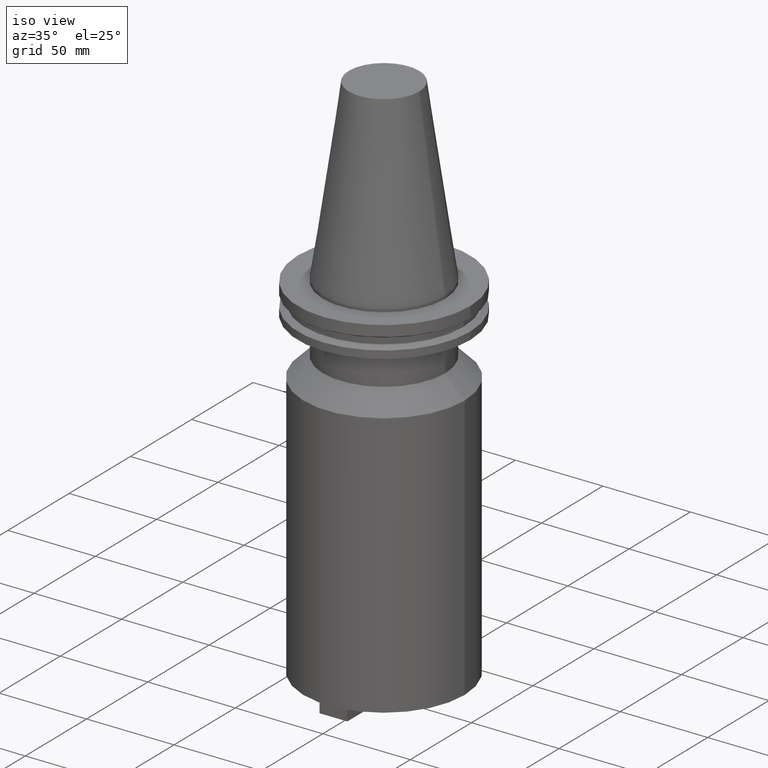
[diagram: clean part render]
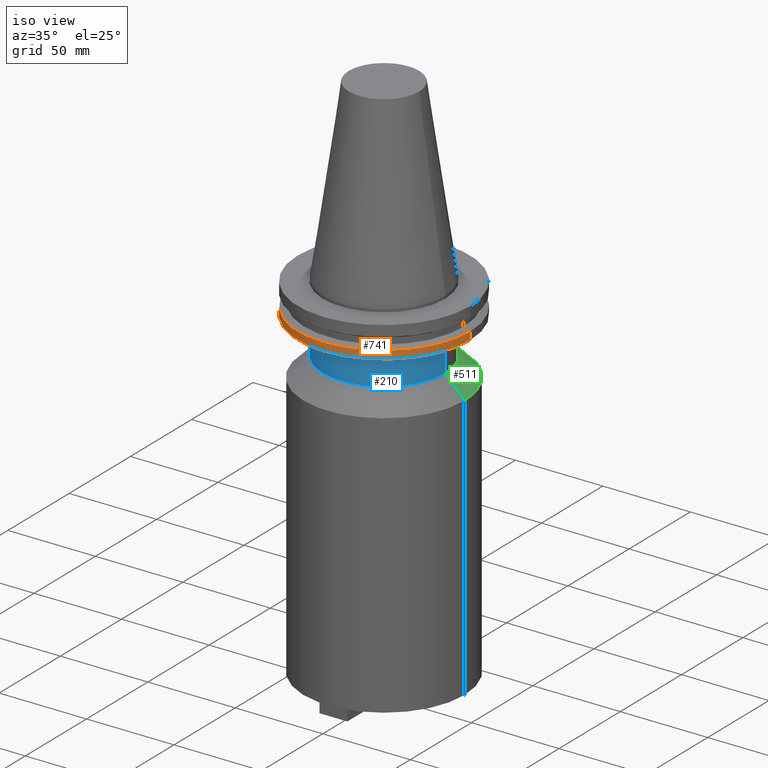
[diagram: same view with three faces highlighted in distinct colors, each labeled with its STEP entity id]
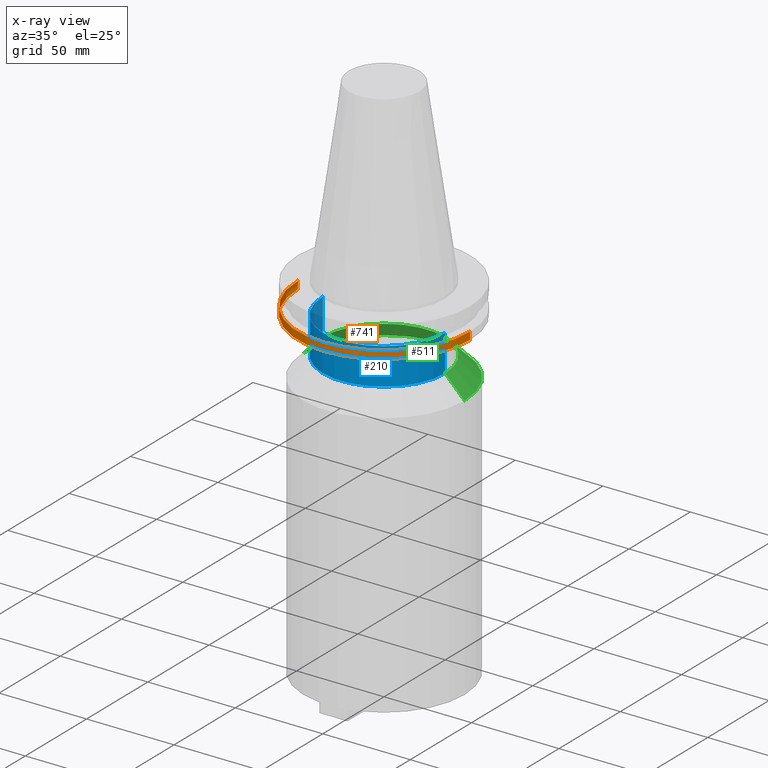
[diagram: x-ray of the same camera — body ghosted, the three highlighted faces saturated]
A machine part, iso view with three faces highlighted in distinct colors.
The next image is the same camera in x-ray (body ghosted, the three faces saturated) — at least one of them is partly hidden behind the body in this view.
Their STEP definitions:

[orange] entity #741 — the highlighted cylindrical surface (partial cylindrical patch) has radius 49.215 mm, axis along (-0, -0, 1).
#203 = VERTEX_POINT ( 'NONE', #540 ) ;
#227 = CIRCLE ( 'NONE', #352, 49.21499999999998920 ) ;
#277 = DIRECTION ( 'NONE',  ( 1.000000000000000000, 0.000000000000000000, 0.000000000000000000 ) ) ;
#284 = DIRECTION ( 'NONE',  ( -0.000000000000000000, -0.000000000000000000, 1.000000000000000000 ) ) ;
#292 = LINE ( 'NONE', #636, #375 ) ;
#329 = CARTESIAN_POINT ( 'NONE',  ( 0.000000000000000000, 0.000000000000000000, -19.04999999999999716 ) ) ;
#333 = CARTESIAN_POINT ( 'NONE',  ( 49.21499999999998920, 0.000000000000000000, -14.65761014474876944 ) ) ;
#352 = AXIS2_PLACEMENT_3D ( 'NONE', #509, #692, #277 ) ;
#375 = VECTOR ( 'NONE', #284, 1000.000000000000000 ) ;
#378 = DIRECTION ( 'NONE',  ( -0.000000000000000000, -0.000000000000000000, 1.000000000000000000 ) ) ;
#414 = VERTEX_POINT ( 'NONE', #596 ) ;
#509 = CARTESIAN_POINT ( 'NONE',  ( 0.000000000000000000, 0.000000000000000000, -14.65761014474876944 ) ) ;
#516 = AXIS2_PLACEMENT_3D ( 'NONE', #329, #672, #764 ) ;
#538 = CARTESIAN_POINT ( 'NONE',  ( 49.21499999999998920, 0.000000000000000000, 101.5999999999999943 ) ) ;
#540 = CARTESIAN_POINT ( 'NONE',  ( 49.21499999999998920, 0.000000000000000000, -19.04999999999999716 ) ) ;
#556 = VECTOR ( 'NONE', #378, 1000.000000000000000 ) ;
#578 = DIRECTION ( 'NONE',  ( -0.000000000000000000, -0.000000000000000000, 1.000000000000000000 ) ) ;
#582 = AXIS2_PLACEMENT_3D ( 'NONE', #836, #578, #920 ) ;
#596 = CARTESIAN_POINT ( 'NONE',  ( -49.21499999999998920, 6.027099222003697037E-15, -14.65761014474876944 ) ) ;
#625 = VERTEX_POINT ( 'NONE', #333 ) ;
#636 = CARTESIAN_POINT ( 'NONE',  ( -49.21499999999998920, 6.027099222003697037E-15, 101.5999999999999943 ) ) ;
#670 = CIRCLE ( 'NONE', #516, 49.21499999999998920 ) ;
#672 = DIRECTION ( 'NONE',  ( -0.000000000000000000, -0.000000000000000000, 1.000000000000000000 ) ) ;
#692 = DIRECTION ( 'NONE',  ( -0.000000000000000000, -0.000000000000000000, 1.000000000000000000 ) ) ;
#713 = LINE ( 'NONE', #538, #556 ) ;
#741 = ADVANCED_FACE ( 'NONE', ( #912 ), #1107, .T. ) ;
#764 = DIRECTION ( 'NONE',  ( 1.000000000000000000, 0.000000000000000000, 0.000000000000000000 ) ) ;
#788 = ORIENTED_EDGE ( 'NONE', *, *, #928, .F. ) ;
#822 = EDGE_LOOP ( 'NONE', ( #788, #1057, #998, #899 ) ) ;
#836 = CARTESIAN_POINT ( 'NONE',  ( 0.000000000000000000, 0.000000000000000000, 101.5999999999999943 ) ) ;
#872 = EDGE_CURVE ( 'NONE', #414, #625, #227, .T. ) ;
#899 = ORIENTED_EDGE ( 'NONE', *, *, #872, .F. ) ;
#912 = FACE_OUTER_BOUND ( 'NONE', #822, .T. ) ;
#920 = DIRECTION ( 'NONE',  ( 1.000000000000000000, 0.000000000000000000, 0.000000000000000000 ) ) ;
#928 = EDGE_CURVE ( 'NONE', #1097, #414, #292, .T. ) ;
#933 = EDGE_CURVE ( 'NONE', #203, #625, #713, .T. ) ;
#998 = ORIENTED_EDGE ( 'NONE', *, *, #933, .T. ) ;
#1021 = CARTESIAN_POINT ( 'NONE',  ( -49.21499999999998920, 6.027099222003697037E-15, -19.04999999999999716 ) ) ;
#1057 = ORIENTED_EDGE ( 'NONE', *, *, #1090, .T. ) ;
#1090 = EDGE_CURVE ( 'NONE', #1097, #203, #670, .T. ) ;
#1097 = VERTEX_POINT ( 'NONE', #1021 ) ;
#1107 = CYLINDRICAL_SURFACE ( 'NONE', #582, 49.21499999999998920 ) ;

[blue] entity #210 — the highlighted cylindrical surface (partial cylindrical patch) has radius 34.925 mm, axis along (-0, -0, 1).
#39 = DIRECTION ( 'NONE',  ( -0.000000000000000000, -0.000000000000000000, 1.000000000000000000 ) ) ;
#91 = ORIENTED_EDGE ( 'NONE', *, *, #895, .F. ) ;
#120 = CARTESIAN_POINT ( 'NONE',  ( 34.92499999999999716, 0.000000000000000000, 101.5999999999999943 ) ) ;
#142 = VERTEX_POINT ( 'NONE', #961 ) ;
#210 = ADVANCED_FACE ( 'NONE', ( #798 ), #716, .T. ) ;
#223 = EDGE_CURVE ( 'NONE', #142, #473, #882, .T. ) ;
#272 = DIRECTION ( 'NONE',  ( -0.000000000000000000, -0.000000000000000000, 1.000000000000000000 ) ) ;
#288 = DIRECTION ( 'NONE',  ( 1.000000000000000000, 0.000000000000000000, 0.000000000000000000 ) ) ;
#310 = CARTESIAN_POINT ( 'NONE',  ( -34.92499999999999716, 4.277078946022130887E-15, -39.99999999999999289 ) ) ;
#355 = ORIENTED_EDGE ( 'NONE', *, *, #362, .F. ) ;
#362 = EDGE_CURVE ( 'NONE', #914, #611, #849, .T. ) ;
#392 = CIRCLE ( 'NONE', #784, 34.92499999999999716 ) ;
#395 = VECTOR ( 'NONE', #272, 1000.000000000000000 ) ;
#402 = CARTESIAN_POINT ( 'NONE',  ( 0.000000000000000000, 0.000000000000000000, -39.99999999999999289 ) ) ;
#427 = DIRECTION ( 'NONE',  ( -0.000000000000000000, -0.000000000000000000, 1.000000000000000000 ) ) ;
#440 = EDGE_LOOP ( 'NONE', ( #355, #762, #951, #91 ) ) ;
#473 = VERTEX_POINT ( 'NONE', #1086 ) ;
#488 = CARTESIAN_POINT ( 'NONE',  ( -34.92499999999999716, 4.277078946022130887E-15, -19.04999999999999716 ) ) ;
#558 = AXIS2_PLACEMENT_3D ( 'NONE', #629, #1063, #288 ) ;
#569 = CIRCLE ( 'NONE', #943, 34.92499999999999716 ) ;
#611 = VERTEX_POINT ( 'NONE', #488 ) ;
#623 = CARTESIAN_POINT ( 'NONE',  ( -34.92499999999999716, 4.277078946022130887E-15, 101.5999999999999943 ) ) ;
#629 = CARTESIAN_POINT ( 'NONE',  ( 0.000000000000000000, 0.000000000000000000, 101.5999999999999943 ) ) ;
#673 = DIRECTION ( 'NONE',  ( 1.000000000000000000, 0.000000000000000000, 0.000000000000000000 ) ) ;
#697 = EDGE_CURVE ( 'NONE', #914, #142, #569, .T. ) ;
#716 = CYLINDRICAL_SURFACE ( 'NONE', #558, 34.92499999999999716 ) ;
#762 = ORIENTED_EDGE ( 'NONE', *, *, #697, .T. ) ;
#767 = DIRECTION ( 'NONE',  ( 1.000000000000000000, 0.000000000000000000, 0.000000000000000000 ) ) ;
#784 = AXIS2_PLACEMENT_3D ( 'NONE', #846, #427, #767 ) ;
#798 = FACE_OUTER_BOUND ( 'NONE', #440, .T. ) ;
#829 = DIRECTION ( 'NONE',  ( -0.000000000000000000, -0.000000000000000000, 1.000000000000000000 ) ) ;
#846 = CARTESIAN_POINT ( 'NONE',  ( 0.000000000000000000, 0.000000000000000000, -19.04999999999999716 ) ) ;
#849 = LINE ( 'NONE', #623, #395 ) ;
#882 = LINE ( 'NONE', #120, #1022 ) ;
#895 = EDGE_CURVE ( 'NONE', #611, #473, #392, .T. ) ;
#914 = VERTEX_POINT ( 'NONE', #310 ) ;
#943 = AXIS2_PLACEMENT_3D ( 'NONE', #402, #829, #673 ) ;
#951 = ORIENTED_EDGE ( 'NONE', *, *, #223, .T. ) ;
#961 = CARTESIAN_POINT ( 'NONE',  ( 34.92499999999999716, 0.000000000000000000, -39.99999999999999289 ) ) ;
#1022 = VECTOR ( 'NONE', #39, 1000.000000000000000 ) ;
#1063 = DIRECTION ( 'NONE',  ( -0.000000000000000000, -0.000000000000000000, 1.000000000000000000 ) ) ;
#1086 = CARTESIAN_POINT ( 'NONE',  ( 34.92499999999999716, 0.000000000000000000, -19.04999999999999716 ) ) ;

[green] entity #511 — the highlighted conical surface has half-angle 45 deg.
#22 = CARTESIAN_POINT ( 'NONE',  ( 0.000000000000000000, 0.000000000000000000, -39.99999999999999289 ) ) ;
#53 = VECTOR ( 'NONE', #348, 999.9999999999998863 ) ;
#56 = AXIS2_PLACEMENT_3D ( 'NONE', #859, #439, #779 ) ;
#66 = AXIS2_PLACEMENT_3D ( 'NONE', #976, #1062, #646 ) ;
#70 = EDGE_CURVE ( 'NONE', #1044, #814, #319, .T. ) ;
#122 = CONICAL_SURFACE ( 'NONE', #66, 46.04999999999999716, 0.7853981633974501664 ) ;
#137 = ORIENTED_EDGE ( 'NONE', *, *, #1083, .F. ) ;
#142 = VERTEX_POINT ( 'NONE', #961 ) ;
#207 = AXIS2_PLACEMENT_3D ( 'NONE', #22, #676, #359 ) ;
#281 = VECTOR ( 'NONE', #1061, 999.9999999999998863 ) ;
#295 = EDGE_CURVE ( 'NONE', #142, #914, #551, .T. ) ;
#308 = ORIENTED_EDGE ( 'NONE', *, *, #70, .T. ) ;
#310 = CARTESIAN_POINT ( 'NONE',  ( -34.92499999999999716, 4.277078946022130887E-15, -39.99999999999999289 ) ) ;
#319 = CIRCLE ( 'NONE', #56, 46.04999999999999716 ) ;
#348 = DIRECTION ( 'NONE',  ( -0.7071067811865489050, 0.000000000000000000, -0.7071067811865462405 ) ) ;
#359 = DIRECTION ( 'NONE',  ( 1.000000000000000000, 0.000000000000000000, 0.000000000000000000 ) ) ;
#424 = LINE ( 'NONE', #598, #53 ) ;
#433 = CARTESIAN_POINT ( 'NONE',  ( -46.04999999999999716, 0.000000000000000000, -51.12499999999995026 ) ) ;
#439 = DIRECTION ( 'NONE',  ( -0.000000000000000000, -0.000000000000000000, 1.000000000000000000 ) ) ;
#461 = CARTESIAN_POINT ( 'NONE',  ( 46.04999999999999716, 5.639498510073560988E-15, -51.12499999999995026 ) ) ;
#511 = ADVANCED_FACE ( 'NONE', ( #633 ), #122, .T. ) ;
#551 = CIRCLE ( 'NONE', #207, 34.92499999999999716 ) ;
#598 = CARTESIAN_POINT ( 'NONE',  ( -46.04999999999999716, 0.000000000000000000, -51.12499999999995026 ) ) ;
#633 = FACE_OUTER_BOUND ( 'NONE', #891, .T. ) ;
#646 = DIRECTION ( 'NONE',  ( -1.000000000000000000, 0.000000000000000000, 0.000000000000000000 ) ) ;
#676 = DIRECTION ( 'NONE',  ( -0.000000000000000000, -0.000000000000000000, 1.000000000000000000 ) ) ;
#751 = ORIENTED_EDGE ( 'NONE', *, *, #295, .F. ) ;
#779 = DIRECTION ( 'NONE',  ( 1.000000000000000000, 0.000000000000000000, 0.000000000000000000 ) ) ;
#801 = CARTESIAN_POINT ( 'NONE',  ( 46.04999999999999716, 5.639498510073560988E-15, -51.12499999999995026 ) ) ;
#814 = VERTEX_POINT ( 'NONE', #433 ) ;
#859 = CARTESIAN_POINT ( 'NONE',  ( 0.000000000000000000, 0.000000000000000000, -51.12499999999995026 ) ) ;
#887 = LINE ( 'NONE', #801, #281 ) ;
#891 = EDGE_LOOP ( 'NONE', ( #751, #1034, #308, #137 ) ) ;
#914 = VERTEX_POINT ( 'NONE', #310 ) ;
#957 = EDGE_CURVE ( 'NONE', #142, #1044, #887, .T. ) ;
#961 = CARTESIAN_POINT ( 'NONE',  ( 34.92499999999999716, 0.000000000000000000, -39.99999999999999289 ) ) ;
#976 = CARTESIAN_POINT ( 'NONE',  ( 0.000000000000000000, 0.000000000000000000, -51.12499999999995026 ) ) ;
#1034 = ORIENTED_EDGE ( 'NONE', *, *, #957, .T. ) ;
#1044 = VERTEX_POINT ( 'NONE', #461 ) ;
#1061 = DIRECTION ( 'NONE',  ( 0.7071067811865489050, 8.659560562354950115E-17, -0.7071067811865462405 ) ) ;
#1062 = DIRECTION ( 'NONE',  ( 0.000000000000000000, 0.000000000000000000, -1.000000000000000000 ) ) ;
#1083 = EDGE_CURVE ( 'NONE', #914, #814, #424, .T. ) ;